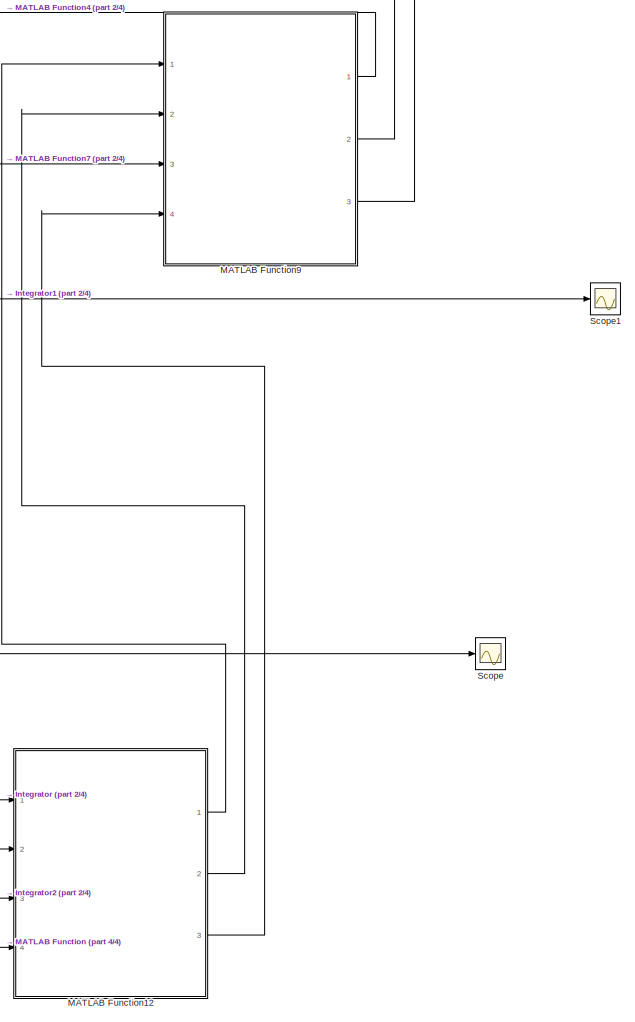
[diagram: root canvas - part 1/4, right side, full height]
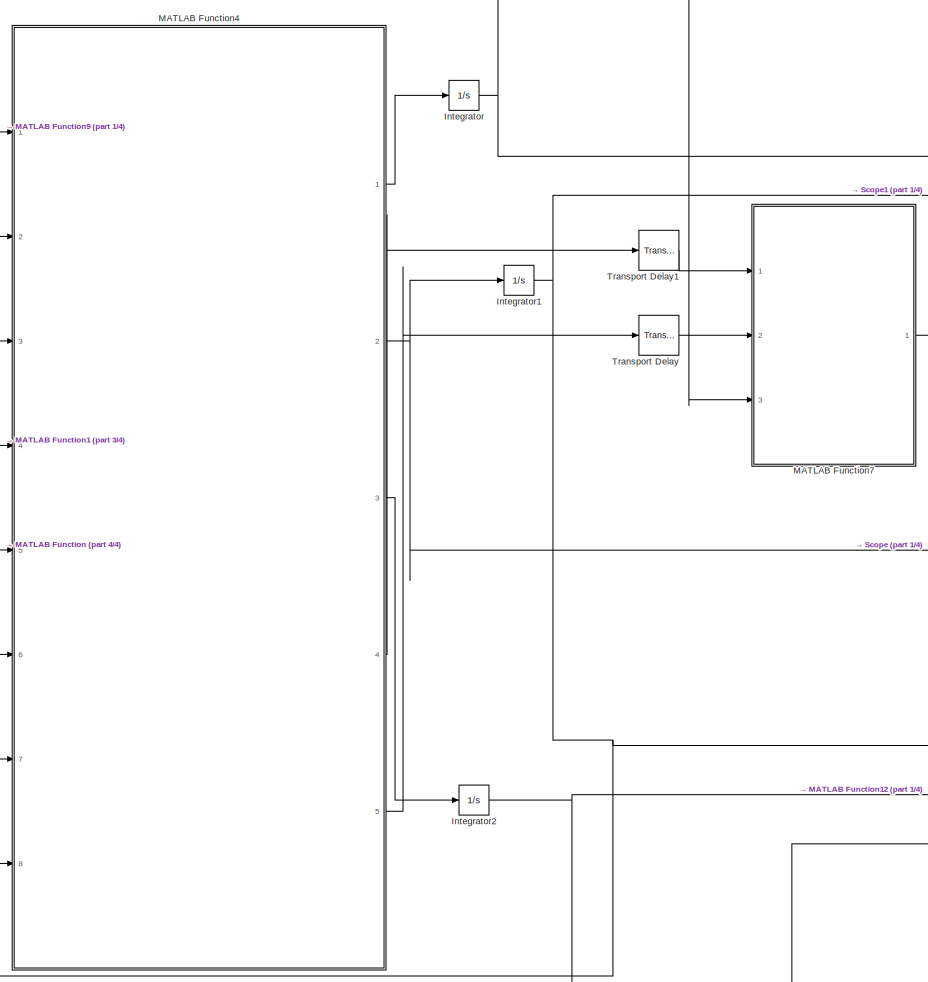
[diagram: root canvas - part 2/4, center side, full height]
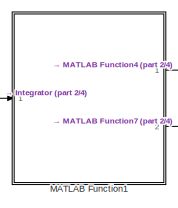
[diagram: root canvas - part 3/4, top left region]
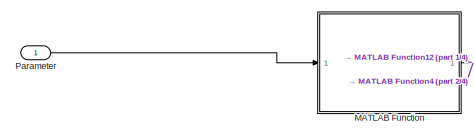
[diagram: root canvas - part 4/4, middle left region]
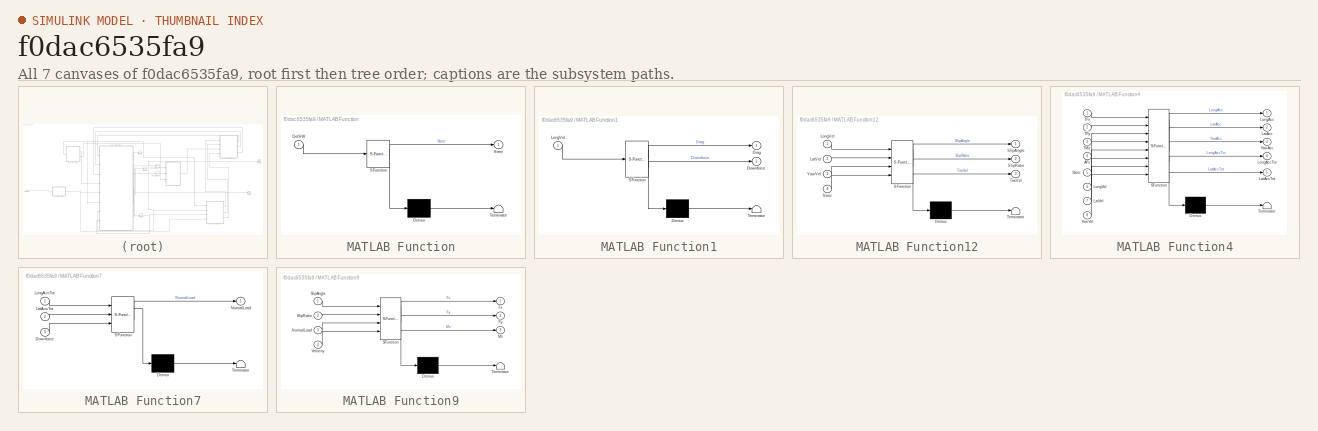
[diagram: thumbnail index - all 7 canvases of the model, root first then tree order]
MODEL slx_f0dac6535fa9
KIND model
CONFIG AbsTol = auto
CONFIG EnableMultiTasking = off
CONFIG FixedStep = auto
CONFIG MaxStep = auto
CONFIG MinStep = auto
CONFIG RelTol = 1e-3
CONFIG SampleTimeConstraint = Unconstrained
CONFIG SolverName = VariableStepAuto
CONFIG StartTime = 0.0
CONFIG StopTime = 10.0
BLOCK [Integrator] Integrator
  Ports = [1, 1]
BLOCK [Integrator] Integrator1
  Ports = [1, 1]
BLOCK [Integrator] Integrator2
  Ports = [1, 1]
BLOCK [SubSystem] MATLAB Function
  ErrorFcn = Stateflow.Translate.translate
  PermitHierarchicalResolution = ExplicitOnly
  Ports = [1, 1]
  RequestExecContextInheritance = off
  SFBlockType = MATLAB Function
  TreatAsAtomicUnit = on
BLOCK [Demux] MATLAB Function/ Demux 
  Outputs = 1
  Ports = [1, 1]
BLOCK [S-Function] MATLAB Function/ SFunction 
  EnableBusSupport = on
  FunctionName = sf_sfun
  Parameters = AckermanFront,AckermanRear,ToeFront,ToeRear
  PortCounts = [1 2]
  Ports = [1, 2]
  SFcnIsStateOwnerBlock = off
  SFunctionDeploymentMode = off
  Tag = Stateflow S-Function 2
BLOCK [Terminator] MATLAB Function/ Terminator 
BLOCK [Inport] MATLAB Function/DelSW
BLOCK [Outport] MATLAB Function/Steer
BLOCK [SubSystem] MATLAB Function1
  ErrorFcn = Stateflow.Translate.translate
  PermitHierarchicalResolution = ExplicitOnly
  Ports = [1, 2]
  RequestExecContextInheritance = off
  SFBlockType = MATLAB Function
  TreatAsAtomicUnit = on
BLOCK [Demux] MATLAB Function1/ Demux 
  Outputs = 1
  Ports = [1, 1]
BLOCK [S-Function] MATLAB Function1/ SFunction 
  EnableBusSupport = on
  FunctionName = sf_sfun
  Parameters = Parameter
  PortCounts = [1 3]
  Ports = [1, 3]
  SFcnIsStateOwnerBlock = off
  SFunctionDeploymentMode = off
  Tag = Stateflow S-Function 1
BLOCK [Terminator] MATLAB Function1/ Terminator 
BLOCK [Outport] MATLAB Function1/Downforce
  Port = 2
BLOCK [Outport] MATLAB Function1/Drag
BLOCK [Inport] MATLAB Function1/LongVel
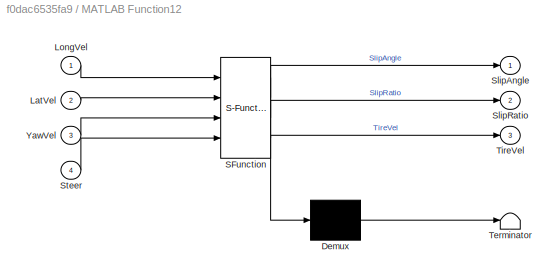
BLOCK [SubSystem] MATLAB Function12
  ErrorFcn = Stateflow.Translate.translate
  PermitHierarchicalResolution = ExplicitOnly
  Ports = [4, 3]
  RequestExecContextInheritance = off
  SFBlockType = MATLAB Function
  TreatAsAtomicUnit = on
BLOCK [Demux] MATLAB Function12/ Demux 
  Outputs = 1
  Ports = [1, 1]
BLOCK [S-Function] MATLAB Function12/ SFunction 
  EnableBusSupport = on
  FunctionName = sf_sfun
  Parameters = Parameter
  PortCounts = [4 4]
  Ports = [4, 4]
  SFcnIsStateOwnerBlock = off
  SFunctionDeploymentMode = off
  Tag = Stateflow S-Function 13
BLOCK [Terminator] MATLAB Function12/ Terminator 
BLOCK [Inport] MATLAB Function12/LatVel
  Port = 2
BLOCK [Inport] MATLAB Function12/LongVel
BLOCK [Outport] MATLAB Function12/SlipAngle
BLOCK [Outport] MATLAB Function12/SlipRatio
  Port = 2
BLOCK [Inport] MATLAB Function12/Steer
  Port = 4
BLOCK [Outport] MATLAB Function12/TireVel
  Port = 3
BLOCK [Inport] MATLAB Function12/YawVel
  Port = 3
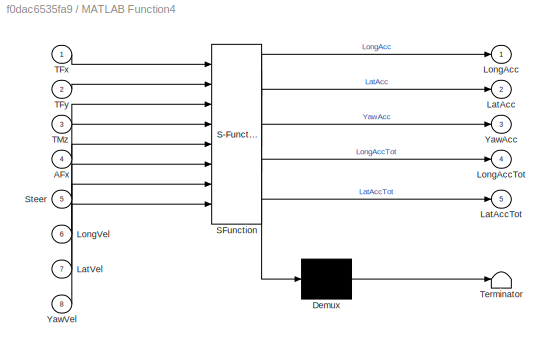
BLOCK [SubSystem] MATLAB Function4
  ErrorFcn = Stateflow.Translate.translate
  PermitHierarchicalResolution = ExplicitOnly
  Ports = [8, 5]
  RequestExecContextInheritance = off
  SFBlockType = MATLAB Function
  TreatAsAtomicUnit = on
BLOCK [Demux] MATLAB Function4/ Demux 
  Outputs = 1
  Ports = [1, 1]
BLOCK [S-Function] MATLAB Function4/ SFunction 
  EnableBusSupport = on
  FunctionName = sf_sfun
  Parameters = Parameter
  PortCounts = [8 6]
  Ports = [8, 6]
  SFcnIsStateOwnerBlock = off
  SFunctionDeploymentMode = off
  Tag = Stateflow S-Function 5
BLOCK [Terminator] MATLAB Function4/ Terminator 
BLOCK [Inport] MATLAB Function4/AFx
  Port = 4
BLOCK [Outport] MATLAB Function4/LatAcc
  Port = 2
BLOCK [Outport] MATLAB Function4/LatAccTot
  Port = 5
BLOCK [Inport] MATLAB Function4/LatVel
  Port = 7
BLOCK [Outport] MATLAB Function4/LongAcc
BLOCK [Outport] MATLAB Function4/LongAccTot
  Port = 4
BLOCK [Inport] MATLAB Function4/LongVel
  Port = 6
BLOCK [Inport] MATLAB Function4/Steer
  Port = 5
BLOCK [Inport] MATLAB Function4/TFx
BLOCK [Inport] MATLAB Function4/TFy
  Port = 2
BLOCK [Inport] MATLAB Function4/TMz
  Port = 3
BLOCK [Outport] MATLAB Function4/YawAcc
  Port = 3
BLOCK [Inport] MATLAB Function4/YawVel
  Port = 8
BLOCK [SubSystem] MATLAB Function7
  ErrorFcn = Stateflow.Translate.translate
  PermitHierarchicalResolution = ExplicitOnly
  Ports = [3, 1]
  RequestExecContextInheritance = off
  SFBlockType = MATLAB Function
  TreatAsAtomicUnit = on
BLOCK [Demux] MATLAB Function7/ Demux 
  Outputs = 1
  Ports = [1, 1]
BLOCK [S-Function] MATLAB Function7/ SFunction 
  EnableBusSupport = on
  FunctionName = sf_sfun
  Parameters = Parameter
  PortCounts = [3 2]
  Ports = [3, 2]
  SFcnIsStateOwnerBlock = off
  SFunctionDeploymentMode = off
  Tag = Stateflow S-Function 8
BLOCK [Terminator] MATLAB Function7/ Terminator 
BLOCK [Inport] MATLAB Function7/Downforce
  Port = 3
BLOCK [Inport] MATLAB Function7/LatAccTot
  Port = 2
BLOCK [Inport] MATLAB Function7/LongAccTot
BLOCK [Outport] MATLAB Function7/NormalLoad
BLOCK [SubSystem] MATLAB Function9
  ErrorFcn = Stateflow.Translate.translate
  PermitHierarchicalResolution = ExplicitOnly
  Ports = [4, 3]
  RequestExecContextInheritance = off
  SFBlockType = MATLAB Function
  TreatAsAtomicUnit = on
BLOCK [Demux] MATLAB Function9/ Demux 
  Outputs = 1
  Ports = [1, 1]
BLOCK [S-Function] MATLAB Function9/ SFunction 
  EnableBusSupport = on
  FunctionName = sf_sfun
  Parameters = Parameter,Tire
  PortCounts = [4 4]
  Ports = [4, 4]
  SFcnIsStateOwnerBlock = off
  SFunctionDeploymentMode = off
  Tag = Stateflow S-Function 10
BLOCK [Terminator] MATLAB Function9/ Terminator 
BLOCK [Outport] MATLAB Function9/Fx
BLOCK [Outport] MATLAB Function9/Fy
  Port = 2
BLOCK [Outport] MATLAB Function9/Mz
  Port = 3
BLOCK [Inport] MATLAB Function9/NormalLoad
  Port = 3
BLOCK [Inport] MATLAB Function9/SlipAngle
BLOCK [Inport] MATLAB Function9/SlipRatio
  Port = 2
BLOCK [Inport] MATLAB Function9/Velocity
  Port = 4
BLOCK [Inport] Parameter
  OutMax = [130]
  OutMin = [-130]
  Unit = deg
BLOCK [Scope] Scope
  Floating = off
  NumInputPorts = 1
  Ports = [1]
  ScopeSpecificationString = Simulink.scopes.TimeScopeBlockCfg('CurrentConfiguration', extmgr.ConfigurationSet(extmgr.Configuration('Core','General UI',true),extmgr.Configuration('Core','Source UI',true),extmgr.Configuration('Sources','WiredSimulink',true),extmgr.Configuration('Visuals','Time Domain',true,'SerializedDisplays',{struct('MinYLimReal','-10','MaxYLimReal','10','YLabelReal','','MinYLimMag','0','MaxYLimMag','10','Le...<+744ch>
BLOCK [Scope] Scope1
  Floating = off
  NumInputPorts = 1
  Ports = [1]
  ScopeSpecificationString = Simulink.scopes.TimeScopeBlockCfg('CurrentConfiguration', extmgr.ConfigurationSet(extmgr.Configuration('Core','General UI',true),extmgr.Configuration('Core','Source UI',true),extmgr.Configuration('Sources','WiredSimulink',true,'DataLoggingVariableName','ScopeData1'),extmgr.Configuration('Visuals','Time Domain',true,'SerializedDisplays',{struct('MinYLimReal','-10','MaxYLimReal','10','YLabelReal',''...<+771ch>
BLOCK [TransportDelay] Transport Delay
  Ports = [1, 1]
BLOCK [TransportDelay] Transport Delay1
  Ports = [1, 1]
NET Integrator1:1 -> MATLAB Function12:2, MATLAB Function4:7, Scope1:1
NET Integrator2:1 -> MATLAB Function12:3, MATLAB Function4:8
NET Integrator:1 -> MATLAB Function12:1, MATLAB Function1:1, MATLAB Function4:6
LINE MATLAB Function12:1 -> MATLAB Function9:1
LINE MATLAB Function12:2 -> MATLAB Function9:2
LINE MATLAB Function12:3 -> MATLAB Function9:4
LINE MATLAB Function1:1 -> MATLAB Function4:4
LINE MATLAB Function1:2 -> MATLAB Function7:3
LINE MATLAB Function4:1 -> Integrator:1
NET MATLAB Function4:2 -> Integrator1:1, Scope:1
LINE MATLAB Function4:3 -> Integrator2:1
LINE MATLAB Function4:4 -> Transport Delay1:1
LINE MATLAB Function4:5 -> Transport Delay:1
LINE MATLAB Function7:1 -> MATLAB Function9:3
LINE MATLAB Function9:1 -> MATLAB Function4:1
LINE MATLAB Function9:2 -> MATLAB Function4:2
LINE MATLAB Function9:3 -> MATLAB Function4:3
NET MATLAB Function:1 -> MATLAB Function12:4, MATLAB Function4:5
LINE Parameter:1 -> MATLAB Function:1
LINE Transport Delay1:1 -> MATLAB Function7:1
LINE Transport Delay:1 -> MATLAB Function7:2
note: NET lines group one-source signal fan-out (src -> all destinations, sorted); 1:1 wires keep LINE
CHART MATLAB Function1 states=1 transitions=1
  STATE_LABEL 'eML_blk_kernel()'
  STATE_LABEL 'SCRIPT:\nfunction [Drag, Downforce] = SimplifiedAeroLoads( LongVel, ...\n    Parameter )\n%% SimplifiedWeightTransfer - Simplified Normal Loads\n% Computes tire normal loads using simplified weight transfer and\n% aerodynamic loading.\n% \n% Inputs:\n%   LongVel    - (n,1 numeric) Longitudinal Velocity {dot{x}}  [m/s]\n%   AirDensity - (n,1 numeric) Air Density           {rho_air} [kg/m^3]\n%   RefArea    -...<+677ch>'
CHART MATLAB Function states=1 transitions=1
  STATE_LABEL 'eML_blk_kernel()'
  STATE_LABEL 'SCRIPT:\nfunction Steer      = SteerFunction( DelSW, ToeFront, ToeRear, AckermanFront, AckermanRear) \n%     Steer = @(DelSW, i) Parameter.Susp.Toe(1) .* (-1).^(mod(i,2)+1)        + ...\n%         Parameter.Steer.MaxTire   .* (DelSW ./ Parameter.Steer.MaxWheel)     + ...\n%         Parameter.Steer.Quadratic .* (DelSW ./ Parameter.Steer.MaxWheel).^2 .* (-1).^(mod(i,2)+1) + ...\n%         Parameter.Steer...<+308ch>'
CHART MATLAB Function4 states=1 transitions=1
  STATE_LABEL 'eML_blk_kernel()'
  STATE_LABEL 'SCRIPT:\nfunction [LongAcc, LatAcc, YawAcc, LongAccTot, LatAccTot] = ...\n    FullTrack3DOFAccelerations( TFx, TFy, TMz, AFx, Steer, LongVel, LatVel, YawVel, Parameter)                                 \n%% FullTrack3DOFAccelerations - Full Track Planar Accelerations\n% Computes planar motion accelerations for a 3DOF full track chassis model\n% \n% Inputs:\n%   TFx        - (n,4 numeric) Tire Longitudinal...<+2562ch>'
CHART MATLAB Function7 states=1 transitions=1
  STATE_LABEL 'eML_blk_kernel()'
  STATE_LABEL 'SCRIPT:\nfunction NormalLoad  = SimplifiedWeightTransfer( LongAccTot,...\n         LatAccTot, Downforce, Parameter ) \n%% SimplifiedWeightTransfer - Simplified Normal Loads\n% Computes tire normal loads using simplified weight transfer and\n% aerodynamic loading.\n% \n% Inputs:\n%   LongAccTot - (n,1 numeric) Total Longitudinal Acceleration     {a_x}   [m/s^2]\n%   LatAccTot  - (n,1 numeric) Total Lateral ...<+1772ch>'
CHART MATLAB Function9 states=1 transitions=1
  STATE_LABEL 'eML_blk_kernel()'
  STATE_LABEL 'SCRIPT:\nfunction [Fx, Fy, Mz] = ContactPatchLoads( SlipAngle, SlipRatio, ...\n    NormalLoad, Velocity, ...\n    Parameter,  Tire) ...\n%% ContactPatchLoads - Tire Load Evaluation\n% This script evaluates a Pacejka contact patch tire model using the\n% formatted by TireModelFittingMain(). \n% \n% Inputs:\n%   Tire          - (struct)      Pacejka Parameters\n%   SlipAngle     - (n,1 numeric) Slip Angle    ...<+3551ch>'
CHART MATLAB Function12 states=1 transitions=1
  STATE_LABEL 'eML_blk_kernel()'
  STATE_LABEL 'SCRIPT:\nfunction [SlipAngle, SlipRatio, TireVel] = SlipEstimation( ...\n    LongVel, LatVel, YawVel, Steer, Parameter)\n\n%% SlipEstimation - Slip Angle and Slip Ratio Calculations\n% Estimates tire slips and center velocity from chassis velocity and a\n% handful of tire states.\n% \n% Inputs:\n%   LongVel   - (1,1 numeric) Longitudinal Velocity {x_dot}   [m/s]\n%   LatVel    - (1,1 numeric) Lateral Veloci...<+1216ch>'
CHART  states=0 transitions=0
CHART  states=0 transitions=0
CHART  states=0 transitions=0
CHART  states=0 transitions=0
CHART  states=0 transitions=0
CHART  states=0 transitions=0
